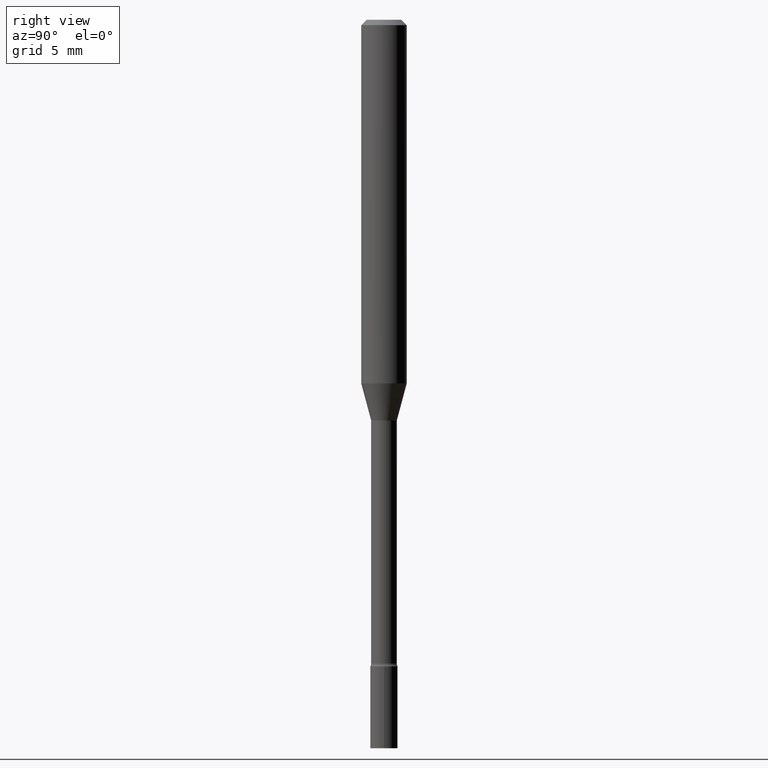
[diagram: clean part render]
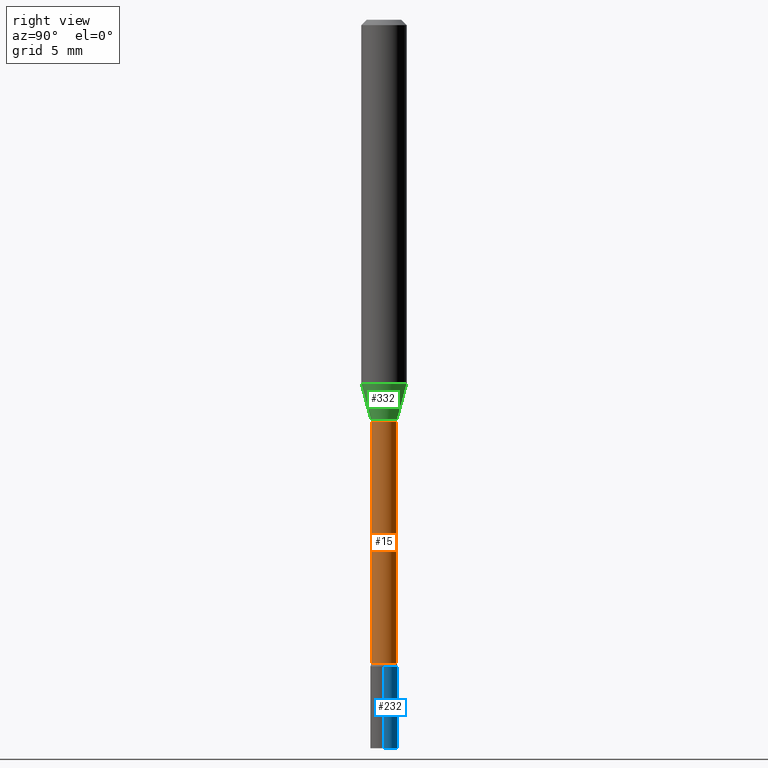
[diagram: same view with three faces highlighted in distinct colors, each labeled with its STEP entity id]
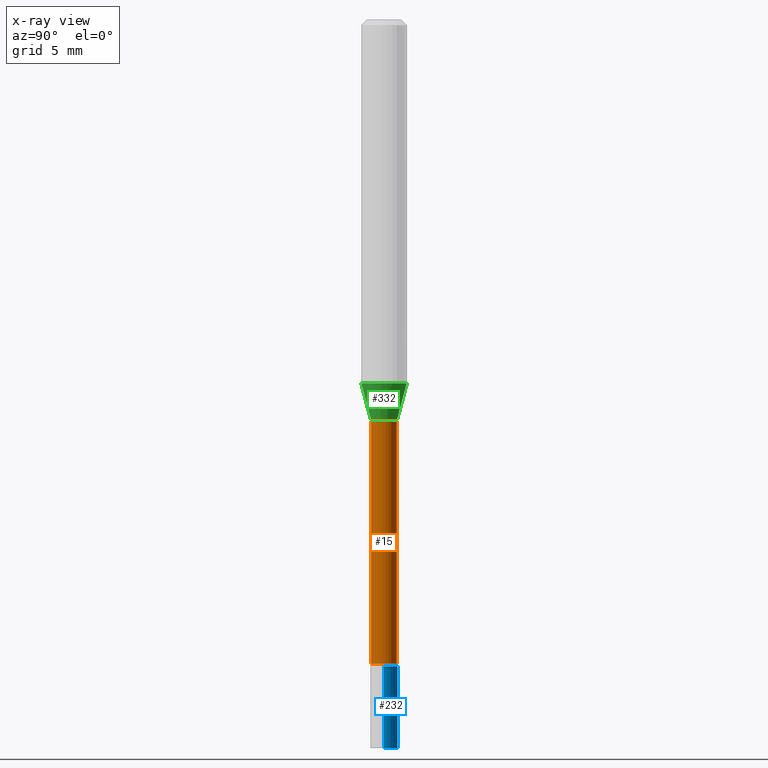
[diagram: x-ray of the same camera — body ghosted, the three highlighted faces saturated]
A machine part, right view with three faces highlighted in distinct colors.
The next image is the same camera in x-ray (body ghosted, the three faces saturated) — at least one of them is partly hidden behind the body in this view.
Their STEP definitions:

[orange] entity #15 — the highlighted cylindrical surface (edge-blend (fillet) strip) has radius 0.8954 mm, axis along (-0, 0, 1).
#10 = CARTESIAN_POINT ( 'NONE',  ( 2.694836430718442103E-29, -3.847536632100227789E-15, -1.101974787463810834 ) ) ;
#15 = ADVANCED_FACE ( 'NONE', ( #134 ), #421, .T. ) ;
#28 = EDGE_CURVE ( 'NONE', #326, #428, #251, .T. ) ;
#34 = CARTESIAN_POINT ( 'NONE',  ( 4.321369981448559219E-29, -6.169810202561705812E-15, -1.767098259685360606 ) ) ;
#49 = DIRECTION ( 'NONE',  ( -2.445461058978122069E-29, 3.491492433284533823E-15, 1.000000000000000000 ) ) ;
#51 = VERTEX_POINT ( 'NONE', #207 ) ;
#74 = EDGE_LOOP ( 'NONE', ( #414, #172, #360, #194 ) ) ;
#85 = AXIS2_PLACEMENT_3D ( 'NONE', #10, #49, #253 ) ;
#92 = VECTOR ( 'NONE', #104, 39.37007874015748143 ) ;
#104 = DIRECTION ( 'NONE',  ( -2.445461058978122069E-29, 3.491492433284533823E-15, 1.000000000000000000 ) ) ;
#107 = CIRCLE ( 'NONE', #176, 0.03525000000000008682 ) ;
#118 = DIRECTION ( 'NONE',  ( -2.445461058978122069E-29, 3.491492433284533823E-15, 1.000000000000000000 ) ) ;
#120 = EDGE_CURVE ( 'NONE', #51, #288, #343, .T. ) ;
#125 = VECTOR ( 'NONE', #318, 39.37007874015748143 ) ;
#134 = FACE_OUTER_BOUND ( 'NONE', #74, .T. ) ;
#149 = CARTESIAN_POINT ( 'NONE',  ( -2.461494343884138594E-16, -0.03525000000000384076, -1.101974787463810834 ) ) ;
#172 = ORIENTED_EDGE ( 'NONE', *, *, #28, .T. ) ;
#176 = AXIS2_PLACEMENT_3D ( 'NONE', #34, #118, #276 ) ;
#191 = DIRECTION ( 'NONE',  ( -2.445461058978122069E-29, 3.491492433284533823E-15, 1.000000000000000000 ) ) ;
#194 = ORIENTED_EDGE ( 'NONE', *, *, #120, .F. ) ;
#207 = CARTESIAN_POINT ( 'NONE',  ( -2.461494343883982794E-16, -0.03525000000000625550, -1.767098259685360606 ) ) ;
#215 = CARTESIAN_POINT ( 'NONE',  ( 2.504663143554787774E-16, 0.03524999999999615247, -1.101974787463811056 ) ) ;
#241 = CARTESIAN_POINT ( 'NONE',  ( 2.584599201327800595E-16, 0.03524999999999392508, -1.767098259685360606 ) ) ;
#251 = LINE ( 'NONE', #444, #125 ) ;
#253 = DIRECTION ( 'NONE',  ( -6.982962677686265133E-15, -1.000000000000000000, 3.874961693140799059E-15 ) ) ;
#276 = DIRECTION ( 'NONE',  ( -6.982962677686266711E-15, -1.000000000000000000, 0.000000000000000000 ) ) ;
#288 = VERTEX_POINT ( 'NONE', #149 ) ;
#317 = EDGE_CURVE ( 'NONE', #51, #326, #107, .T. ) ;
#318 = DIRECTION ( 'NONE',  ( -2.445461058978122069E-29, 3.491492433284533823E-15, 1.000000000000000000 ) ) ;
#326 = VERTEX_POINT ( 'NONE', #241 ) ;
#343 = LINE ( 'NONE', #418, #92 ) ;
#345 = AXIS2_PLACEMENT_3D ( 'NONE', #382, #191, #393 ) ;
#360 = ORIENTED_EDGE ( 'NONE', *, *, #427, .F. ) ;
#382 = CARTESIAN_POINT ( 'NONE',  ( 0.000000000000000000, 0.000000000000000000, 0.000000000000000000 ) ) ;
#393 = DIRECTION ( 'NONE',  ( -6.982962677686266711E-15, -1.000000000000000000, 3.491492433284533823E-15 ) ) ;
#414 = ORIENTED_EDGE ( 'NONE', *, *, #317, .T. ) ;
#418 = CARTESIAN_POINT ( 'NONE',  ( -2.461494343884411737E-16, -0.03525000000000003825, 1.230751082732799542E-16 ) ) ;
#421 = CYLINDRICAL_SURFACE ( 'NONE', #345, 0.03525000000000003825 ) ;
#427 = EDGE_CURVE ( 'NONE', #288, #428, #498, .T. ) ;
#428 = VERTEX_POINT ( 'NONE', #215 ) ;
#444 = CARTESIAN_POINT ( 'NONE',  ( 2.504663143554355873E-16, 0.03525000000000003825, -1.230751082732799542E-16 ) ) ;
#498 = CIRCLE ( 'NONE', #85, 0.03524999999999999661 ) ;

[blue] entity #232 — the highlighted cylindrical surface (edge-blend (fillet) strip) has radius 0.9525 mm, axis along (-0, 0, 1).
#6 = CARTESIAN_POINT ( 'NONE',  ( -0.03749999999999999861, -6.323717501156401251E-15, -2.000000000000000000 ) ) ;
#26 = EDGE_CURVE ( 'NONE', #491, #438, #204, .T. ) ;
#37 = ORIENTED_EDGE ( 'NONE', *, *, #26, .F. ) ;
#62 = DIRECTION ( 'NONE',  ( 1.000000000000000000, -6.982962677686266711E-15, 4.876176775795935793E-29 ) ) ;
#71 = DIRECTION ( 'NONE',  ( -2.445468806185136597E-29, 3.491481338843145583E-15, 1.000000000000000000 ) ) ;
#78 = DIRECTION ( 'NONE',  ( -2.445468806185136877E-29, 3.491481338843145188E-15, 1.000000000000000000 ) ) ;
#79 = DIRECTION ( 'NONE',  ( -2.445468806185136877E-29, 3.491481338843145188E-15, 1.000000000000000000 ) ) ;
#89 = CARTESIAN_POINT ( 'NONE',  ( 4.340707130978617347E-29, -6.197379376446583794E-15, -1.775000000000000133 ) ) ;
#99 = VECTOR ( 'NONE', #79, 39.37007874015748143 ) ;
#116 = ORIENTED_EDGE ( 'NONE', *, *, #213, .T. ) ;
#122 = CARTESIAN_POINT ( 'NONE',  ( 0.03749999999999999861, -2.618611004132350016E-16, 1.828566290923475922E-30 ) ) ;
#142 = DIRECTION ( 'NONE',  ( 1.000000000000000000, -6.982962677686268288E-15, 0.000000000000000000 ) ) ;
#178 = CARTESIAN_POINT ( 'NONE',  ( 0.03749999999999999861, -7.244823778099525378E-15, -2.000000000000000000 ) ) ;
#179 = CARTESIAN_POINT ( 'NONE',  ( 0.000000000000000000, 0.000000000000000000, 0.000000000000000000 ) ) ;
#198 = AXIS2_PLACEMENT_3D ( 'NONE', #425, #71, #142 ) ;
#203 = FACE_OUTER_BOUND ( 'NONE', #351, .T. ) ;
#204 = LINE ( 'NONE', #122, #99 ) ;
#213 = EDGE_CURVE ( 'NONE', #491, #459, #460, .T. ) ;
#219 = CARTESIAN_POINT ( 'NONE',  ( -0.03749999999999999861, -6.323717501156401251E-15, -1.775000000000000133 ) ) ;
#232 = ADVANCED_FACE ( 'NONE', ( #203 ), #493, .T. ) ;
#279 = LINE ( 'NONE', #439, #305 ) ;
#293 = CARTESIAN_POINT ( 'NONE',  ( 0.03749999999999999861, -6.459240476859818795E-15, -1.775000000000000133 ) ) ;
#305 = VECTOR ( 'NONE', #78, 39.37007874015748143 ) ;
#347 = EDGE_CURVE ( 'NONE', #438, #367, #517, .T. ) ;
#351 = EDGE_LOOP ( 'NONE', ( #116, #442, #392, #37 ) ) ;
#367 = VERTEX_POINT ( 'NONE', #219 ) ;
#372 = AXIS2_PLACEMENT_3D ( 'NONE', #179, #453, #62 ) ;
#392 = ORIENTED_EDGE ( 'NONE', *, *, #347, .F. ) ;
#406 = DIRECTION ( 'NONE',  ( -2.445468806185136597E-29, 3.491481338843145583E-15, 1.000000000000000000 ) ) ;
#413 = AXIS2_PLACEMENT_3D ( 'NONE', #89, #406, #477 ) ;
#417 = EDGE_CURVE ( 'NONE', #459, #367, #279, .T. ) ;
#425 = CARTESIAN_POINT ( 'NONE',  ( 4.890937612370273194E-29, -6.982962677686291165E-15, -2.000000000000000000 ) ) ;
#438 = VERTEX_POINT ( 'NONE', #293 ) ;
#439 = CARTESIAN_POINT ( 'NONE',  ( -0.03749999999999999861, 2.664535259100375598E-16, -1.844600658845589458E-30 ) ) ;
#442 = ORIENTED_EDGE ( 'NONE', *, *, #417, .T. ) ;
#453 = DIRECTION ( 'NONE',  ( -2.445468806185136597E-29, 3.491481338843145583E-15, 1.000000000000000000 ) ) ;
#459 = VERTEX_POINT ( 'NONE', #6 ) ;
#460 = CIRCLE ( 'NONE', #198, 0.03749999999999999861 ) ;
#477 = DIRECTION ( 'NONE',  ( 1.000000000000000000, -6.982962677686268288E-15, 0.000000000000000000 ) ) ;
#491 = VERTEX_POINT ( 'NONE', #178 ) ;
#493 = CYLINDRICAL_SURFACE ( 'NONE', #372, 0.03749999999999999861 ) ;
#517 = CIRCLE ( 'NONE', #413, 0.03749999999999999861 ) ;

[green] entity #332 — the highlighted conical surface has half-angle 15 deg.
#11 = LINE ( 'NONE', #97, #497 ) ;
#24 = EDGE_LOOP ( 'NONE', ( #394, #240, #112, #291 ) ) ;
#38 = FACE_OUTER_BOUND ( 'NONE', #24, .T. ) ;
#40 = DIRECTION ( 'NONE',  ( -2.445461058978122069E-29, 3.491492433284533823E-15, 1.000000000000000000 ) ) ;
#42 = VERTEX_POINT ( 'NONE', #162 ) ;
#72 = CARTESIAN_POINT ( 'NONE',  ( 2.540979878465616281E-16, 0.03576111260566013778, -1.098092501787273356 ) ) ;
#97 = CARTESIAN_POINT ( 'NONE',  ( -2.497185146378605472E-16, -0.03576111260566780525, -1.098092501787272912 ) ) ;
#112 = ORIENTED_EDGE ( 'NONE', *, *, #391, .F. ) ;
#114 = LINE ( 'NONE', #72, #330 ) ;
#140 = DIRECTION ( 'NONE',  ( -6.982962677686265133E-15, -1.000000000000000000, 3.819579138641765120E-15 ) ) ;
#162 = CARTESIAN_POINT ( 'NONE',  ( -2.497185146378605472E-16, -0.03576111260566780525, -1.098092501787272912 ) ) ;
#181 = DIRECTION ( 'NONE',  ( -1.807323732225328167E-15, -0.2588190451025179084, 0.9659258262890690894 ) ) ;
#197 = VERTEX_POINT ( 'NONE', #470 ) ;
#212 = CARTESIAN_POINT ( 'NONE',  ( 2.685342452276640404E-29, -3.833981661036747555E-15, -1.098092501787273134 ) ) ;
#224 = CONICAL_SURFACE ( 'NONE', #331, 0.03576111260566397498, 0.2617993877991499629 ) ;
#233 = EDGE_CURVE ( 'NONE', #42, #363, #11, .T. ) ;
#240 = ORIENTED_EDGE ( 'NONE', *, *, #303, .T. ) ;
#250 = DIRECTION ( 'NONE',  ( -2.445461058978122069E-29, 3.491492433284533823E-15, 1.000000000000000000 ) ) ;
#255 = VERTEX_POINT ( 'NONE', #465 ) ;
#269 = CIRCLE ( 'NONE', #379, 0.03576111260566397498 ) ;
#291 = ORIENTED_EDGE ( 'NONE', *, *, #233, .F. ) ;
#303 = EDGE_CURVE ( 'NONE', #197, #255, #114, .T. ) ;
#315 = CARTESIAN_POINT ( 'NONE',  ( -4.364351673553671654E-16, -0.06250000000000346945, -0.9983016154937480735 ) ) ;
#316 = CARTESIAN_POINT ( 'NONE',  ( 2.441307725804911996E-29, -3.485562536632148597E-15, -0.9983016154937482955 ) ) ;
#330 = VECTOR ( 'NONE', #387, 39.37007874015748854 ) ;
#331 = AXIS2_PLACEMENT_3D ( 'NONE', #419, #40, #515 ) ;
#332 = ADVANCED_FACE ( 'NONE', ( #38 ), #224, .T. ) ;
#355 = AXIS2_PLACEMENT_3D ( 'NONE', #316, #250, #401 ) ;
#363 = VERTEX_POINT ( 'NONE', #315 ) ;
#379 = AXIS2_PLACEMENT_3D ( 'NONE', #212, #409, #140 ) ;
#387 = DIRECTION ( 'NONE',  ( 1.839019923739597949E-15, 0.2588190451025246253, 0.9659258262890670910 ) ) ;
#390 = CIRCLE ( 'NONE', #355, 0.06250000000000000000 ) ;
#391 = EDGE_CURVE ( 'NONE', #363, #255, #390, .T. ) ;
#394 = ORIENTED_EDGE ( 'NONE', *, *, #450, .T. ) ;
#401 = DIRECTION ( 'NONE',  ( -6.982962677686265922E-15, -1.000000000000000000, 4.370956789862821150E-15 ) ) ;
#409 = DIRECTION ( 'NONE',  ( -2.445461058978122069E-29, 3.491492433284533823E-15, 1.000000000000000000 ) ) ;
#419 = CARTESIAN_POINT ( 'NONE',  ( 2.685342452276640404E-29, -3.833981661036747555E-15, -1.098092501787273134 ) ) ;
#450 = EDGE_CURVE ( 'NONE', #42, #197, #269, .T. ) ;
#465 = CARTESIAN_POINT ( 'NONE',  ( 4.440892098500869722E-16, 0.06249999999999652361, -0.9983016154937485176 ) ) ;
#470 = CARTESIAN_POINT ( 'NONE',  ( 3.490935988483243741E-16, 0.03576111260566013778, -1.098092501787273356 ) ) ;
#497 = VECTOR ( 'NONE', #181, 39.37007874015748143 ) ;
#515 = DIRECTION ( 'NONE',  ( -6.982962677686265133E-15, -1.000000000000000000, 3.819579138641765120E-15 ) ) ;